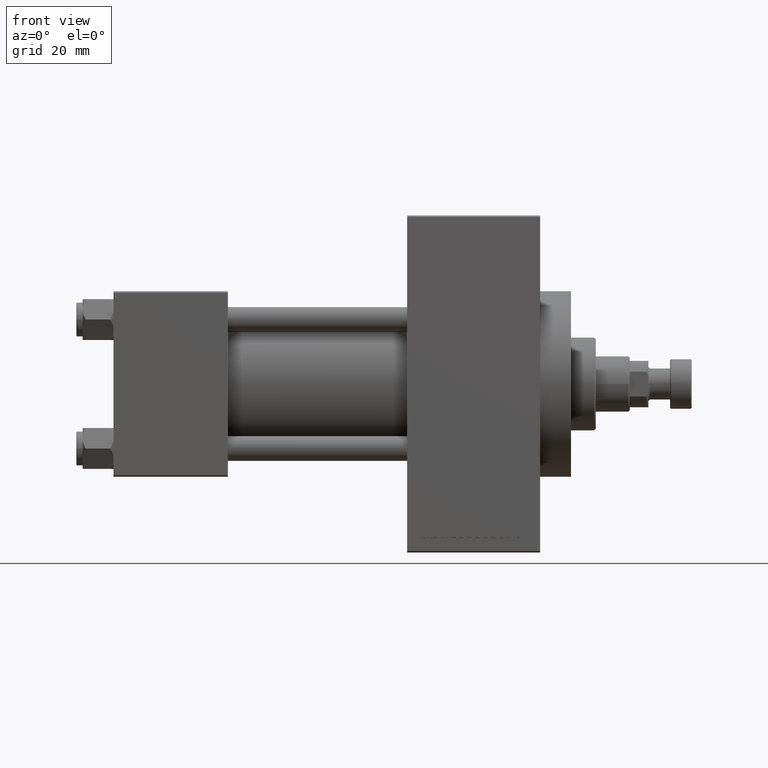
[diagram: clean part render]
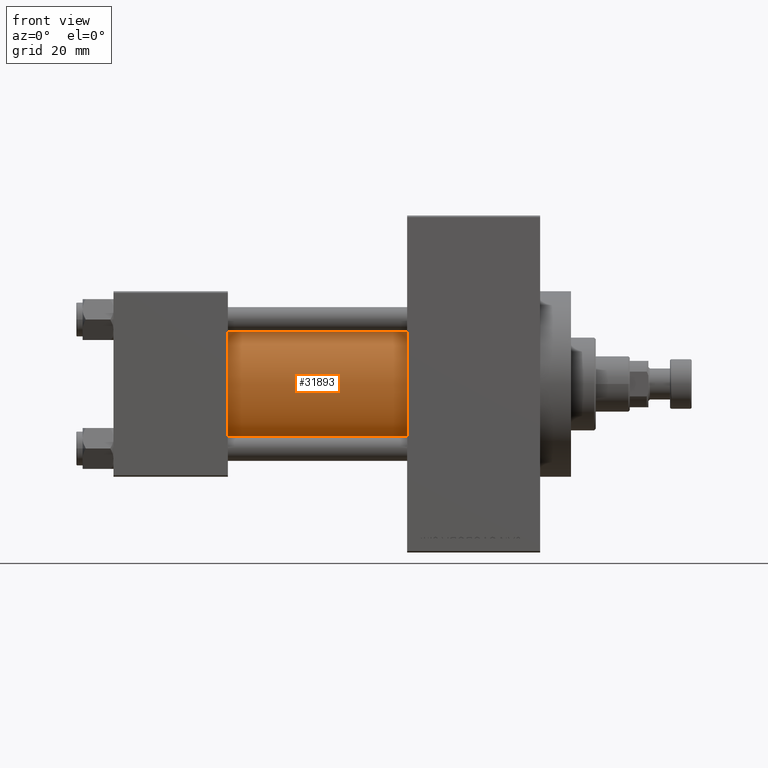
[diagram: same view with one face highlighted and labeled with its STEP entity id]
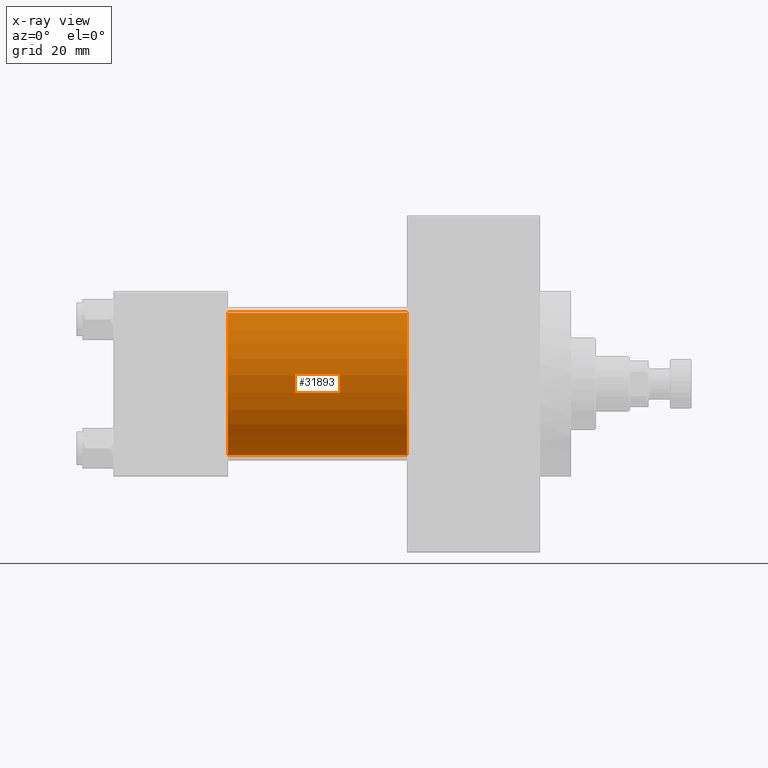
[diagram: x-ray of the same camera — body ghosted, the highlighted face saturated]
A machine part, front view. The second image highlights one B-rep face of the part: STEP entity #31893.
The next image is the same camera in x-ray: the body ghosted, the highlighted face saturated — about 0% of this face is hidden behind the body in this view.
In plain terms, the highlighted cylindrical surface (partial cylindrical patch) has radius 23 mm, axis along (-1, -0, -0).
Its self-contained STEP definition (entity closure, byte-faithful):
#1138 = VERTEX_POINT ( 'NONE', #33922 ) ;
#1169 = EDGE_CURVE ( 'NONE', #1138, #7771, #15291, .T. ) ;
#1595 = CARTESIAN_POINT ( 'NONE',  ( 95.00000000000000000, 2.146024240737012665E-16, -23.00000000000000000 ) ) ;
#3390 = DIRECTION ( 'NONE',  ( 0.000000000000000000, 0.000000000000000000, -1.000000000000000000 ) ) ;
#4209 = DIRECTION ( 'NONE',  ( -1.000000000000000000, -0.000000000000000000, -0.000000000000000000 ) ) ;
#4212 = ORIENTED_EDGE ( 'NONE', *, *, #1169, .T. ) ;
#4410 = EDGE_CURVE ( 'NONE', #7771, #24232, #24838, .T. ) ;
#4595 = CARTESIAN_POINT ( 'NONE',  ( 37.00000000000000000, -2.602085213965210642E-15, 23.00000000000000000 ) ) ;
#7771 = VERTEX_POINT ( 'NONE', #4595 ) ;
#9804 = CARTESIAN_POINT ( 'NONE',  ( 37.00000000000000000, 2.146024240737012665E-16, -23.00000000000000000 ) ) ;
#10393 = CARTESIAN_POINT ( 'NONE',  ( 95.00000000000000000, -2.602085213965210642E-15, 0.000000000000000000 ) ) ;
#10657 = AXIS2_PLACEMENT_3D ( 'NONE', #10393, #20973, #25730 ) ;
#15291 = LINE ( 'NONE', #30863, #45552 ) ;
#17867 = ORIENTED_EDGE ( 'NONE', *, *, #30298, .F. ) ;
#19353 = VECTOR ( 'NONE', #25226, 1000.000000000000000 ) ;
#20973 = DIRECTION ( 'NONE',  ( -1.000000000000000000, -0.000000000000000000, -0.000000000000000000 ) ) ;
#22594 = DIRECTION ( 'NONE',  ( 1.000000000000000000, -0.000000000000000000, 0.000000000000000000 ) ) ;
#24232 = VERTEX_POINT ( 'NONE', #9804 ) ;
#24838 = CIRCLE ( 'NONE', #44923, 23.00000000000000000 ) ;
#25226 = DIRECTION ( 'NONE',  ( -1.000000000000000000, -0.000000000000000000, -0.000000000000000000 ) ) ;
#25730 = DIRECTION ( 'NONE',  ( 0.000000000000000000, 0.000000000000000000, 1.000000000000000000 ) ) ;
#28125 = VERTEX_POINT ( 'NONE', #34697 ) ;
#28515 = EDGE_CURVE ( 'NONE', #28125, #24232, #36057, .T. ) ;
#30298 = EDGE_CURVE ( 'NONE', #1138, #28125, #39494, .T. ) ;
#30617 = EDGE_LOOP ( 'NONE', ( #39184, #17867, #4212, #42216 ) ) ;
#30863 = CARTESIAN_POINT ( 'NONE',  ( 95.00000000000000000, -2.602085213965210642E-15, 23.00000000000000000 ) ) ;
#31893 = ADVANCED_FACE ( 'NONE', ( #40090 ), #32790, .T. ) ;
#32790 = CYLINDRICAL_SURFACE ( 'NONE', #10657, 23.00000000000000000 ) ;
#33922 = CARTESIAN_POINT ( 'NONE',  ( 95.00000000000000000, -2.602085213965210642E-15, 23.00000000000000000 ) ) ;
#34697 = CARTESIAN_POINT ( 'NONE',  ( 95.00000000000000000, 2.146024240737012665E-16, -23.00000000000000000 ) ) ;
#36057 = LINE ( 'NONE', #1595, #19353 ) ;
#37085 = AXIS2_PLACEMENT_3D ( 'NONE', #37608, #41847, #3390 ) ;
#37608 = CARTESIAN_POINT ( 'NONE',  ( 95.00000000000000000, -2.602085213965210642E-15, 0.000000000000000000 ) ) ;
#39184 = ORIENTED_EDGE ( 'NONE', *, *, #28515, .F. ) ;
#39494 = CIRCLE ( 'NONE', #37085, 23.00000000000000000 ) ;
#40090 = FACE_OUTER_BOUND ( 'NONE', #30617, .T. ) ;
#41847 = DIRECTION ( 'NONE',  ( 1.000000000000000000, 0.000000000000000000, 0.000000000000000000 ) ) ;
#42216 = ORIENTED_EDGE ( 'NONE', *, *, #4410, .T. ) ;
#44923 = AXIS2_PLACEMENT_3D ( 'NONE', #46457, #22594, #49494 ) ;
#45552 = VECTOR ( 'NONE', #4209, 1000.000000000000000 ) ;
#46457 = CARTESIAN_POINT ( 'NONE',  ( 37.00000000000000000, -2.602085213965210642E-15, 0.000000000000000000 ) ) ;
#49494 = DIRECTION ( 'NONE',  ( 0.000000000000000000, 0.000000000000000000, 1.000000000000000000 ) ) ;